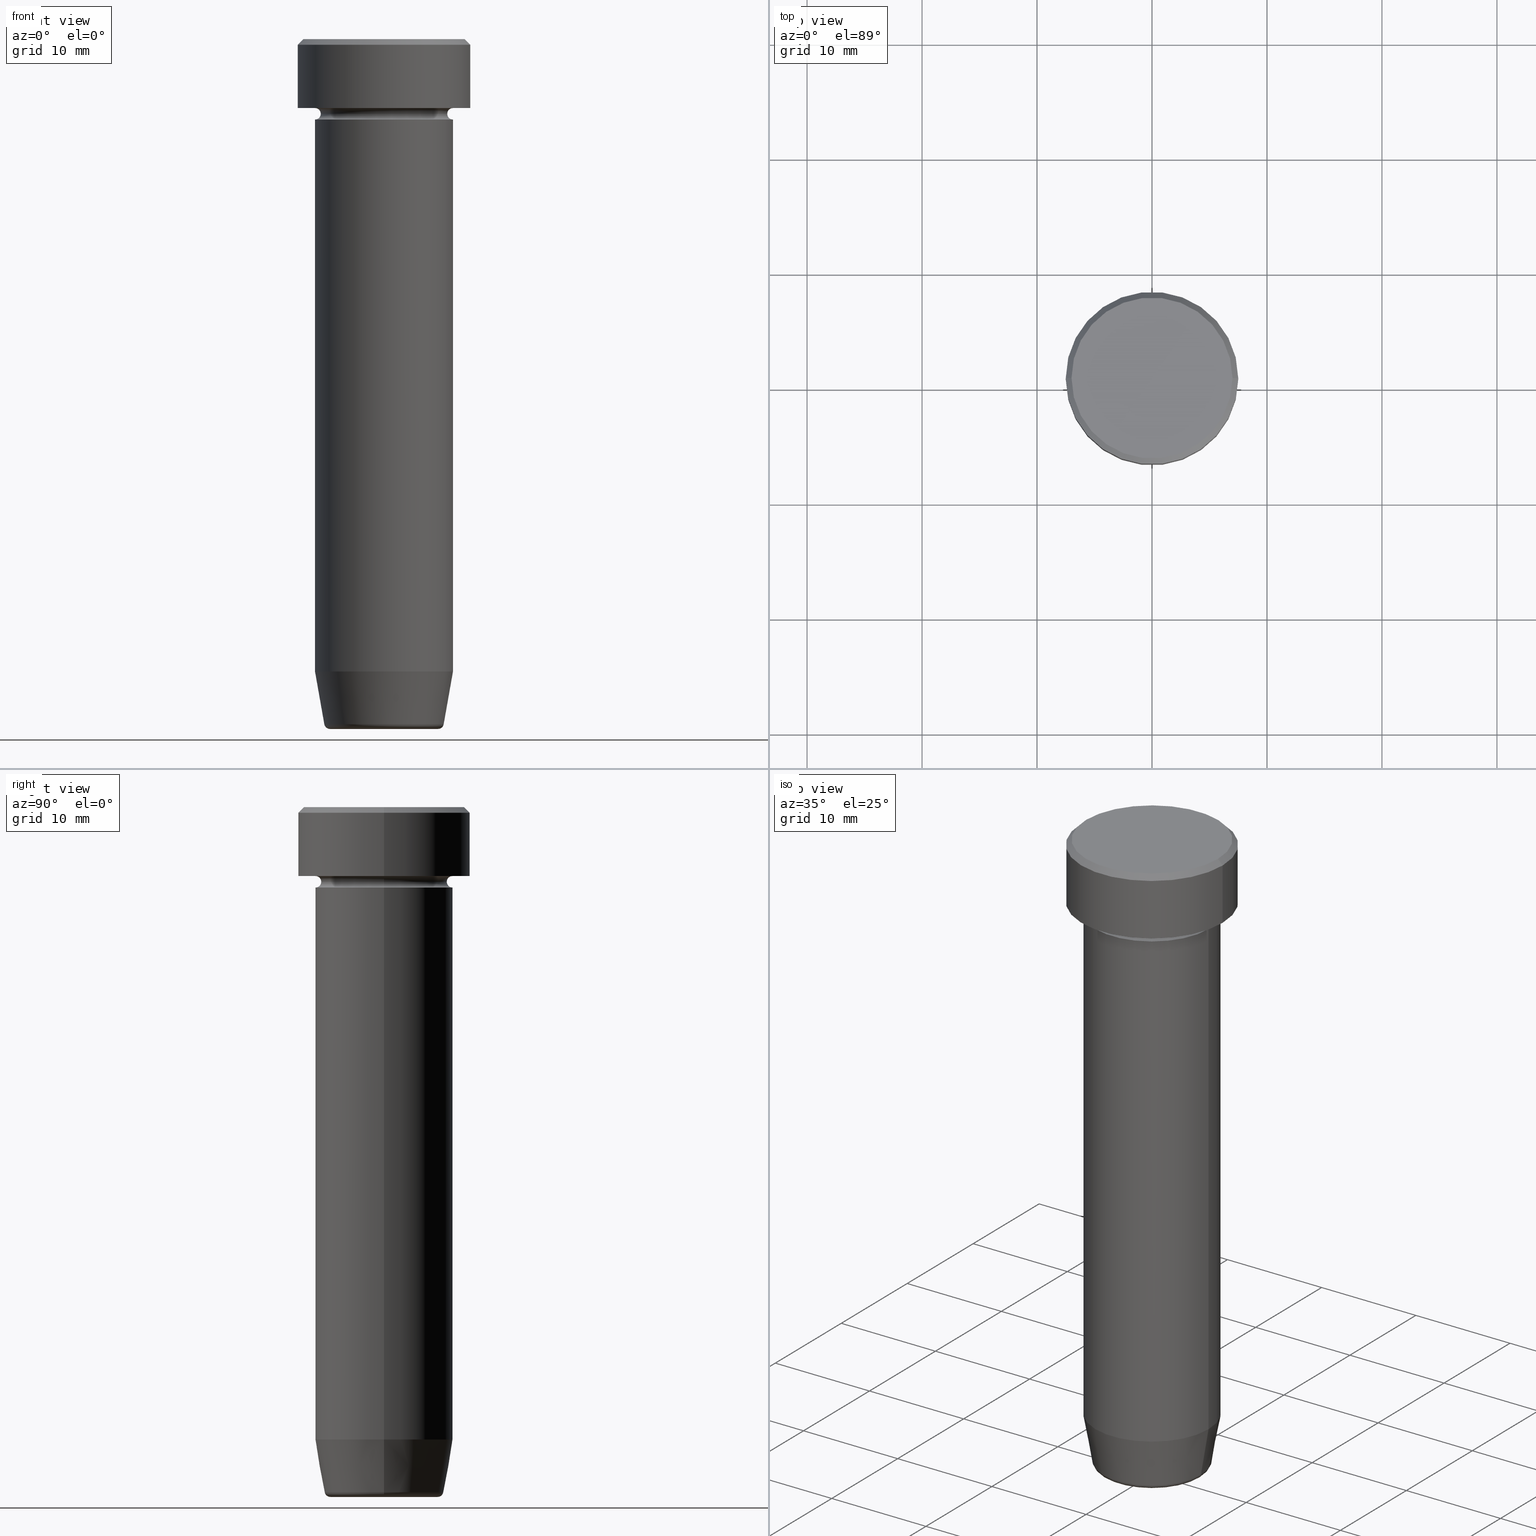
[diagram: canonical four-view strip — front | top / right | iso, engineering-drawing reading convention]
A machine part, canonical four-view strip (front | top / right | iso — engineering-drawing reading convention). The complete STEP part file that produces these views, byte-faithful:
ISO-10303-21;
HEADER;
FILE_DESCRIPTION (( 'STEP AP203' ),
    '1' );
FILE_NAME ('d902.STEP',
    '2024-01-03T00:08:45',
    ( '' ),
    ( '' ),
    'SwSTEP 2.0',
    'SolidWorks 2019',
    '' );
FILE_SCHEMA (( 'CONFIG_CONTROL_DESIGN' ));
ENDSEC;

DATA;
#1 = ADVANCED_FACE ( 'NONE', ( #326 ), #167, .F. ) ;
#2 = EDGE_LOOP ( 'NONE', ( #96, #515, #476, #63 ) ) ;
#3 = DIRECTION ( 'NONE',  ( -0.000000000000000000, -0.000000000000000000, 1.000000000000000000 ) ) ;
#4 = ORIENTED_EDGE ( 'NONE', *, *, #236, .T. ) ;
#5 = APPROVAL_DATE_TIME ( #571, #340 ) ;
#6 = VERTEX_POINT ( 'NONE', #372 ) ;
#7 = VERTEX_POINT ( 'NONE', #182 ) ;
#8 = EDGE_CURVE ( 'NONE', #565, #295, #83, .T. ) ;
#9 = DIRECTION ( 'NONE',  ( -1.000000000000000000, 0.000000000000000000, 0.000000000000000000 ) ) ;
#10 = FACE_OUTER_BOUND ( 'NONE', #517, .T. ) ;
#11 = TOROIDAL_SURFACE ( 'NONE', #362, 6.000000000000000000, 0.5000000000000000000 ) ;
#12 = CIRCLE ( 'NONE', #39, 6.000000000000000000 ) ;
#13 = ORIENTED_EDGE ( 'NONE', *, *, #88, .T. ) ;
#14 = DIRECTION ( 'NONE',  ( -1.000000000000000000, 0.000000000000000000, 0.000000000000000000 ) ) ;
#15 = CC_DESIGN_SECURITY_CLASSIFICATION ( #135, ( #511 ) ) ;
#16 = PERSON_AND_ORGANIZATION ( #253, #54 ) ;
#17 = VERTEX_POINT ( 'NONE', #58 ) ;
#18 = ORIENTED_EDGE ( 'NONE', *, *, #215, .F. ) ;
#19 = ORIENTED_EDGE ( 'NONE', *, *, #56, .F. ) ;
#20 = DIRECTION ( 'NONE',  ( 1.000000000000000000, 0.000000000000000000, 0.000000000000000000 ) ) ;
#21 = TOROIDAL_SURFACE ( 'NONE', #144, 6.000000000000000000, 0.5000000000000000000 ) ;
#22 = DIRECTION ( 'NONE',  ( 0.000000000000000000, -1.000000000000000000, 0.000000000000000000 ) ) ;
#23 = CARTESIAN_POINT ( 'NONE',  ( 0.000000000000000000, 0.000000000000000000, -17.00000000000000000 ) ) ;
#24 = VECTOR ( 'NONE', #115, 1000.000000000000000 ) ;
#25 = EDGE_LOOP ( 'NONE', ( #582, #480, #496, #434 ) ) ;
#26 = CYLINDRICAL_SURFACE ( 'NONE', #354, 6.000000000000000000 ) ;
#27 = CARTESIAN_POINT ( 'NONE',  ( 0.000000000000000000, 0.000000000000000000, -60.00000000000000000 ) ) ;
#28 = CARTESIAN_POINT ( 'NONE',  ( -6.000000000000000000, 0.000000000000000000, -6.500000000000000888 ) ) ;
#29 = DIRECTION ( 'NONE',  ( 0.000000000000000000, -0.000000000000000000, 1.000000000000000000 ) ) ;
#30 = CONICAL_SURFACE ( 'NONE', #53, 5.118365096457674568, 0.1745329251994331143 ) ;
#31 = AXIS2_PLACEMENT_3D ( 'NONE', #561, #287, #300 ) ;
#32 = DIRECTION ( 'NONE',  ( 1.000000000000000000, 0.000000000000000000, 0.000000000000000000 ) ) ;
#33 = PERSON_AND_ORGANIZATION_ROLE ( 'design_owner' ) ;
#34 = DIRECTION ( 'NONE',  ( 1.000000000000000000, 0.000000000000000000, 0.000000000000000000 ) ) ;
#35 = DIRECTION ( 'NONE',  ( -0.000000000000000000, -0.000000000000000000, 1.000000000000000000 ) ) ;
#36 = DIRECTION ( 'NONE',  ( -0.000000000000000000, -0.000000000000000000, 1.000000000000000000 ) ) ;
#37 =( NAMED_UNIT ( * ) SI_UNIT ( $, .STERADIAN. ) SOLID_ANGLE_UNIT ( ) );
#38 = VECTOR ( 'NONE', #585, 1000.000000000000000 ) ;
#39 = AXIS2_PLACEMENT_3D ( 'NONE', #559, #138, #599 ) ;
#40 = FACE_OUTER_BOUND ( 'NONE', #190, .T. ) ;
#41 = EDGE_CURVE ( 'NONE', #243, #154, #197, .T. ) ;
#42 = CARTESIAN_POINT ( 'NONE',  ( -7.500000000000000000, 9.184850993605147944E-16, 0.000000000000000000 ) ) ;
#43 = EDGE_LOOP ( 'NONE', ( #441, #4, #397, #534 ) ) ;
#44 = FACE_OUTER_BOUND ( 'NONE', #43, .T. ) ;
#45 = CIRCLE ( 'NONE', #393, 6.000000000000000000 ) ;
#46 = CIRCLE ( 'NONE', #94, 7.500000000000000000 ) ;
#47 = VERTEX_POINT ( 'NONE', #90 ) ;
#48 = EDGE_CURVE ( 'NONE', #565, #172, #520, .T. ) ;
#49 = ORIENTED_EDGE ( 'NONE', *, *, #424, .T. ) ;
#50 = FACE_OUTER_BOUND ( 'NONE', #188, .T. ) ;
#51 = ORIENTED_EDGE ( 'NONE', *, *, #8, .T. ) ;
#52 = PERSON_AND_ORGANIZATION_ROLE ( 'design_supplier' ) ;
#53 = AXIS2_PLACEMENT_3D ( 'NONE', #27, #583, #173 ) ;
#54 = ORGANIZATION ( 'NEUR�EN�', 'NEUR�EN�', '' ) ;
#55 = ORIENTED_EDGE ( 'NONE', *, *, #56, .T. ) ;
#56 = EDGE_CURVE ( 'NONE', #244, #210, #505, .T. ) ;
#57 = DIRECTION ( 'NONE',  ( -1.000000000000000000, -1.224646799147351482E-16, 0.000000000000000000 ) ) ;
#58 = CARTESIAN_POINT ( 'NONE',  ( 6.000000000000000000, 0.000000000000000000, -17.00000000000000000 ) ) ;
#59 = DESIGN_CONTEXT ( 'detailed design', #113, 'design' ) ;
#60 = EDGE_CURVE ( 'NONE', #339, #17, #590, .T. ) ;
#61 = CIRCLE ( 'NONE', #238, 6.000000000000000000 ) ;
#62 = AXIS2_PLACEMENT_3D ( 'NONE', #349, #162, #528 ) ;
#63 = ORIENTED_EDGE ( 'NONE', *, *, #148, .T. ) ;
#64 = FACE_OUTER_BOUND ( 'NONE', #106, .T. ) ;
#65 = DIRECTION ( 'NONE',  ( 1.000000000000000000, 0.000000000000000000, 0.000000000000000000 ) ) ;
#66 = LINE ( 'NONE', #119, #38 ) ;
#67 = CARTESIAN_POINT ( 'NONE',  ( 0.000000000000000000, 0.000000000000000000, -0.4999999999999987232 ) ) ;
#68 = DIRECTION ( 'NONE',  ( -0.000000000000000000, -0.000000000000000000, 1.000000000000000000 ) ) ;
#69 = CIRCLE ( 'NONE', #574, 0.5000000000000004441 ) ;
#70 = CC_DESIGN_PERSON_AND_ORGANIZATION_ASSIGNMENT ( #179, #33, ( #127 ) ) ;
#71 = APPLICATION_PROTOCOL_DEFINITION ( 'international standard', 'config_control_design', 1994, #113 ) ;
#72 = COORDINATED_UNIVERSAL_TIME_OFFSET ( 1, 0, .AHEAD. ) ;
#73 = DIRECTION ( 'NONE',  ( -0.000000000000000000, -0.000000000000000000, 1.000000000000000000 ) ) ;
#74 = FACE_OUTER_BOUND ( 'NONE', #439, .T. ) ;
#75 = CARTESIAN_POINT ( 'NONE',  ( 0.000000000000000000, 0.000000000000000000, 0.000000000000000000 ) ) ;
#76 = CARTESIAN_POINT ( 'NONE',  ( 0.000000000000000000, 0.000000000000000000, -60.00000000000000000 ) ) ;
#77 = DIRECTION ( 'NONE',  ( -1.000000000000000000, 1.224646799147351482E-16, 0.000000000000000000 ) ) ;
#78 = ADVANCED_FACE ( 'NONE', ( #552 ), #132, .T. ) ;
#79 = APPLICATION_CONTEXT ( 'configuration controlled 3d designs of mechanical parts and assemblies' ) ;
#80 = CARTESIAN_POINT ( 'NONE',  ( 0.000000000000000000, 0.000000000000000000, -6.000000000000000000 ) ) ;
#81 = AXIS2_PLACEMENT_3D ( 'NONE', #75, #371, #272 ) ;
#82 = CC_DESIGN_APPROVAL ( #361, ( #558 ) ) ;
#83 = LINE ( 'NONE', #42, #157 ) ;
#84 = DIRECTION ( 'NONE',  ( -1.000000000000000000, 0.000000000000000000, 0.000000000000000000 ) ) ;
#85 = CC_DESIGN_DATE_AND_TIME_ASSIGNMENT ( #291, #99, ( #558 ) ) ;
#86 = DIRECTION ( 'NONE',  ( 0.000000000000000000, 0.000000000000000000, -1.000000000000000000 ) ) ;
#87 = EDGE_CURVE ( 'NONE', #212, #244, #338, .T. ) ;
#88 = EDGE_CURVE ( 'NONE', #17, #339, #61, .T. ) ;
#89 = ORIENTED_EDGE ( 'NONE', *, *, #376, .T. ) ;
#90 = CARTESIAN_POINT ( 'NONE',  ( -5.191219157375141613, 6.852645359818003952E-16, -59.58682408883346682 ) ) ;
#91 = CC_DESIGN_DATE_AND_TIME_ASSIGNMENT ( #525, #447, ( #135 ) ) ;
#92 = VECTOR ( 'NONE', #428, 1000.000000000000000 ) ;
#93 = ADVANCED_FACE ( 'NONE', ( #129 ), #224, .F. ) ;
#94 = AXIS2_PLACEMENT_3D ( 'NONE', #303, #498, #20 ) ;
#95 = ORIENTED_EDGE ( 'NONE', *, *, #60, .F. ) ;
#96 = ORIENTED_EDGE ( 'NONE', *, *, #8, .F. ) ;
#97 = ORIENTED_EDGE ( 'NONE', *, *, #390, .F. ) ;
#98 = PERSON_AND_ORGANIZATION ( #253, #54 ) ;
#99 = DATE_TIME_ROLE ( 'creation_date' ) ;
#100 = DIRECTION ( 'NONE',  ( 0.1736481776669305255, 0.000000000000000000, 0.9848077530122081313 ) ) ;
#101 = EDGE_LOOP ( 'NONE', ( #247, #297 ) ) ;
#102 = CARTESIAN_POINT ( 'NONE',  ( 6.000000000000000000, 7.347880794884119736E-16, -6.500000000000000888 ) ) ;
#103 = AXIS2_PLACEMENT_3D ( 'NONE', #543, #73, #269 ) ;
#104 = CIRCLE ( 'NONE', #186, 0.5000000000000004441 ) ;
#105 = DIRECTION ( 'NONE',  ( 0.000000000000000000, 0.000000000000000000, -1.000000000000000000 ) ) ;
#106 = EDGE_LOOP ( 'NONE', ( #293, #483 ) ) ;
#107 = CARTESIAN_POINT ( 'NONE',  ( 0.000000000000000000, 0.000000000000000000, -6.500000000000000888 ) ) ;
#108 = CARTESIAN_POINT ( 'NONE',  ( -6.000000000000000000, 0.000000000000000000, -6.000000000000000000 ) ) ;
#109 = ADVANCED_FACE ( 'NONE', ( #312 ), #207, .F. ) ;
#110 = DIRECTION ( 'NONE',  ( -0.000000000000000000, -0.000000000000000000, 1.000000000000000000 ) ) ;
#111 = EDGE_CURVE ( 'NONE', #6, #210, #373, .T. ) ;
#112 = ORIENTED_EDGE ( 'NONE', *, *, #566, .F. ) ;
#113 = APPLICATION_CONTEXT ( 'configuration controlled 3d designs of mechanical parts and assemblies' ) ;
#114 = CIRCLE ( 'NONE', #296, 7.000000000000001776 ) ;
#115 = DIRECTION ( 'NONE',  ( -0.000000000000000000, -0.000000000000000000, 1.000000000000000000 ) ) ;
#116 = EDGE_LOOP ( 'NONE', ( #334, #192, #408, #95 ) ) ;
#117 = DIRECTION ( 'NONE',  ( -0.1736481776669305255, 2.126576849575773764E-17, 0.9848077530122081313 ) ) ;
#118 = DIRECTION ( 'NONE',  ( -0.000000000000000000, -0.000000000000000000, 1.000000000000000000 ) ) ;
#119 = CARTESIAN_POINT ( 'NONE',  ( 6.000000000000000000, 0.000000000000000000, 0.000000000000000000 ) ) ;
#120 = DIRECTION ( 'NONE',  ( 1.000000000000000000, 0.000000000000000000, 0.000000000000000000 ) ) ;
#121 = EDGE_CURVE ( 'NONE', #569, #47, #69, .T. ) ;
#122 = DIRECTION ( 'NONE',  ( 1.000000000000000000, 0.000000000000000000, 0.000000000000000000 ) ) ;
#123 = EDGE_CURVE ( 'NONE', #154, #290, #452, .T. ) ;
#124 = DIRECTION ( 'NONE',  ( 1.000000000000000000, 0.000000000000000000, 0.000000000000000000 ) ) ;
#125 = DIRECTION ( 'NONE',  ( -1.000000000000000000, 0.000000000000000000, -0.000000000000000000 ) ) ;
#126 = CIRCLE ( 'NONE', #478, 7.500000000000000000 ) ;
#127 = PRODUCT ( 'd902', 'd902', '', ( #426 ) ) ;
#128 = APPROVAL_PERSON_ORGANIZATION ( #16, #228, #278 ) ;
#129 = FACE_OUTER_BOUND ( 'NONE', #422, .T. ) ;
#130 = ADVANCED_FACE ( 'NONE', ( #358 ), #21, .F. ) ;
#131 = DIRECTION ( 'NONE',  ( 1.224646799147353207E-16, 1.000000000000000000, 0.000000000000000000 ) ) ;
#132 = CYLINDRICAL_SURFACE ( 'NONE', #538, 6.000000000000000000 ) ;
#133 = CARTESIAN_POINT ( 'NONE',  ( -6.000000000000000000, 7.347880794884119736E-16, -17.00000000000000000 ) ) ;
#134 = CARTESIAN_POINT ( 'NONE',  ( 0.000000000000000000, 0.000000000000000000, -7.000000000000000000 ) ) ;
#135 = SECURITY_CLASSIFICATION ( '', '', #347 ) ;
#136 = DIRECTION ( 'NONE',  ( 1.000000000000000000, 0.000000000000000000, 0.000000000000000000 ) ) ;
#137 = LINE ( 'NONE', #437, #463 ) ;
#138 = DIRECTION ( 'NONE',  ( -0.000000000000000000, -0.000000000000000000, 1.000000000000000000 ) ) ;
#139 = ORIENTED_EDGE ( 'NONE', *, *, #171, .F. ) ;
#140 = CARTESIAN_POINT ( 'NONE',  ( 0.000000000000000000, 0.000000000000000000, 0.000000000000000000 ) ) ;
#141 = ADVANCED_BREP_SHAPE_REPRESENTATION ( 'd902', ( #235, #226, #231 ), #471 ) ;
#142 = FACE_OUTER_BOUND ( 'NONE', #351, .T. ) ;
#143 = EDGE_LOOP ( 'NONE', ( #365, #49, #301, #570 ) ) ;
#144 = AXIS2_PLACEMENT_3D ( 'NONE', #107, #302, #497 ) ;
#145 = CARTESIAN_POINT ( 'NONE',  ( 6.000000000000000000, 0.000000000000000000, -55.00000000000000000 ) ) ;
#146 = ORIENTED_EDGE ( 'NONE', *, *, #204, .F. ) ;
#147 = ORIENTED_EDGE ( 'NONE', *, *, #121, .F. ) ;
#148 = EDGE_CURVE ( 'NONE', #7, #295, #329, .T. ) ;
#149 = ORIENTED_EDGE ( 'NONE', *, *, #352, .F. ) ;
#150 = ORIENTED_EDGE ( 'NONE', *, *, #376, .F. ) ;
#151 = CYLINDRICAL_SURFACE ( 'NONE', #62, 7.500000000000000000 ) ;
#152 = CC_DESIGN_PERSON_AND_ORGANIZATION_ASSIGNMENT ( #242, #193, ( #135 ) ) ;
#153 = ORIENTED_EDGE ( 'NONE', *, *, #474, .T. ) ;
#154 = VERTEX_POINT ( 'NONE', #145 ) ;
#155 = DIRECTION ( 'NONE',  ( 0.000000000000000000, -1.000000000000000000, 0.000000000000000000 ) ) ;
#156 = PERSON_AND_ORGANIZATION_ROLE ( 'creator' ) ;
#157 = VECTOR ( 'NONE', #573, 1000.000000000000000 ) ;
#158 = AXIS2_PLACEMENT_3D ( 'NONE', #430, #205, #9 ) ;
#159 = VERTEX_POINT ( 'NONE', #341 ) ;
#160 = EDGE_CURVE ( 'NONE', #243, #47, #555, .T. ) ;
#161 = DIRECTION ( 'NONE',  ( 1.000000000000000000, 0.000000000000000000, 0.000000000000000000 ) ) ;
#162 = DIRECTION ( 'NONE',  ( -0.000000000000000000, -0.000000000000000000, 1.000000000000000000 ) ) ;
#163 = EDGE_LOOP ( 'NONE', ( #198, #360, #357, #146 ) ) ;
#164 = CARTESIAN_POINT ( 'NONE',  ( 0.000000000000000000, 0.000000000000000000, 0.000000000000000000 ) ) ;
#165 = CARTESIAN_POINT ( 'NONE',  ( 0.000000000000000000, 0.000000000000000000, 0.000000000000000000 ) ) ;
#166 = DIRECTION ( 'NONE',  ( -1.000000000000000000, 0.000000000000000000, -0.000000000000000000 ) ) ;
#167 = TOROIDAL_SURFACE ( 'NONE', #432, 6.000000000000000000, 0.5000000000000000000 ) ;
#168 = TOROIDAL_SURFACE ( 'NONE', #279, 4.698815280869033550, 0.5000000000000000000 ) ;
#169 = DIRECTION ( 'NONE',  ( 1.000000000000000000, 0.000000000000000000, 0.000000000000000000 ) ) ;
#170 = DIRECTION ( 'NONE',  ( -1.000000000000000000, 1.224646799147351482E-16, 0.000000000000000000 ) ) ;
#171 = EDGE_CURVE ( 'NONE', #290, #154, #548, .T. ) ;
#172 = VERTEX_POINT ( 'NONE', #380 ) ;
#173 = DIRECTION ( 'NONE',  ( 1.000000000000000000, 0.000000000000000000, 0.000000000000000000 ) ) ;
#174 = CARTESIAN_POINT ( 'NONE',  ( 0.000000000000000000, 0.000000000000000000, -17.00000000000000000 ) ) ;
#175 = DIRECTION ( 'NONE',  ( -0.000000000000000000, -0.000000000000000000, 1.000000000000000000 ) ) ;
#176 = ORIENTED_EDGE ( 'NONE', *, *, #199, .T. ) ;
#177 = CALENDAR_DATE ( 2024, 3, 1 ) ;
#178 = AXIS2_PLACEMENT_3D ( 'NONE', #102, #346, #57 ) ;
#179 = PERSON_AND_ORGANIZATION ( #253, #54 ) ;
#180 = DIRECTION ( 'NONE',  ( -0.000000000000000000, -0.000000000000000000, 1.000000000000000000 ) ) ;
#181 = DIRECTION ( 'NONE',  ( -0.7071067811865469066, 0.000000000000000000, -0.7071067811865481278 ) ) ;
#182 = CARTESIAN_POINT ( 'NONE',  ( 7.500000000000000000, 0.000000000000000000, -0.4999999999999987232 ) ) ;
#183 = CALENDAR_DATE ( 2024, 3, 1 ) ;
#184 = DIRECTION ( 'NONE',  ( -0.000000000000000000, -0.000000000000000000, 1.000000000000000000 ) ) ;
#185 = AXIS2_PLACEMENT_3D ( 'NONE', #507, #271, #259 ) ;
#186 = AXIS2_PLACEMENT_3D ( 'NONE', #203, #155, #353 ) ;
#187 = DIRECTION ( 'NONE',  ( 1.000000000000000000, 0.000000000000000000, 0.000000000000000000 ) ) ;
#188 = EDGE_LOOP ( 'NONE', ( #337, #51, #209, #440 ) ) ;
#189 = DIRECTION ( 'NONE',  ( -0.000000000000000000, -0.000000000000000000, 1.000000000000000000 ) ) ;
#190 = EDGE_LOOP ( 'NONE', ( #147, #385, #492, #150 ) ) ;
#191 = CARTESIAN_POINT ( 'NONE',  ( 0.000000000000000000, 0.000000000000000000, 0.000000000000000000 ) ) ;
#192 = ORIENTED_EDGE ( 'NONE', *, *, #171, .T. ) ;
#193 = PERSON_AND_ORGANIZATION_ROLE ( 'classification_officer' ) ;
#194 = EDGE_LOOP ( 'NONE', ( #454, #343, #448, #392 ) ) ;
#195 = AXIS2_PLACEMENT_3D ( 'NONE', #307, #36, #366 ) ;
#196 = APPROVAL_PERSON_ORGANIZATION ( #503, #361, #584 ) ;
#197 = LINE ( 'NONE', #526, #405 ) ;
#198 = ORIENTED_EDGE ( 'NONE', *, *, #248, .T. ) ;
#199 = EDGE_CURVE ( 'NONE', #245, #7, #137, .T. ) ;
#200 = ADVANCED_FACE ( 'NONE', ( #142 ), #457, .T. ) ;
#201 = SHAPE_DEFINITION_REPRESENTATION ( #521, #141 ) ;
#202 = ORIENTED_EDGE ( 'NONE', *, *, #236, .F. ) ;
#203 = CARTESIAN_POINT ( 'NONE',  ( 6.000000000000000000, 0.000000000000000000, -6.500000000000000888 ) ) ;
#204 = EDGE_CURVE ( 'NONE', #244, #518, #305, .T. ) ;
#205 = DIRECTION ( 'NONE',  ( -0.000000000000000000, -0.000000000000000000, 1.000000000000000000 ) ) ;
#206 = DIRECTION ( 'NONE',  ( 1.000000000000000000, 0.000000000000000000, 0.000000000000000000 ) ) ;
#207 = TOROIDAL_SURFACE ( 'NONE', #185, 6.000000000000000000, 0.5000000000000000000 ) ;
#208 = CIRCLE ( 'NONE', #255, 6.000000000000000000 ) ;
#209 = ORIENTED_EDGE ( 'NONE', *, *, #566, .T. ) ;
#210 = VERTEX_POINT ( 'NONE', #369 ) ;
#211 = PERSON_AND_ORGANIZATION_ROLE ( 'creator' ) ;
#212 = VERTEX_POINT ( 'NONE', #322 ) ;
#213 = DIRECTION ( 'NONE',  ( -0.000000000000000000, -0.000000000000000000, 1.000000000000000000 ) ) ;
#214 = CARTESIAN_POINT ( 'NONE',  ( 4.698815280869033550, 0.000000000000000000, -60.00000000000000000 ) ) ;
#215 = EDGE_CURVE ( 'NONE', #536, #159, #66, .T. ) ;
#216 = CARTESIAN_POINT ( 'NONE',  ( -6.000000000000000000, 7.347880794884119736E-16, -6.500000000000000888 ) ) ;
#217 = AXIS2_PLACEMENT_3D ( 'NONE', #67, #284, #187 ) ;
#218 = DIRECTION ( 'NONE',  ( 0.000000000000000000, 0.000000000000000000, -1.000000000000000000 ) ) ;
#219 = AXIS2_PLACEMENT_3D ( 'NONE', #80, #275, #281 ) ;
#220 = CC_DESIGN_PERSON_AND_ORGANIZATION_ASSIGNMENT ( #456, #211, ( #558 ) ) ;
#221 = CARTESIAN_POINT ( 'NONE',  ( 0.000000000000000000, 0.000000000000000000, -6.000000000000000000 ) ) ;
#222 = CALENDAR_DATE ( 2024, 3, 1 ) ;
#223 = ADVANCED_FACE ( 'NONE', ( #74 ), #26, .T. ) ;
#224 = PLANE ( 'NONE',  #529 ) ;
#225 = CARTESIAN_POINT ( 'NONE',  ( 0.000000000000000000, 1.224646799147354440E-15, -60.00000000000000000 ) ) ;
#226 = MANIFOLD_SOLID_BREP ( 'Zaoblit4', #263 ) ;
#227 = CARTESIAN_POINT ( 'NONE',  ( 7.500000000000000000, 0.000000000000000000, 0.000000000000000000 ) ) ;
#228 = APPROVAL ( #399, 'NEUR�EN�' ) ;
#229 = PLANE ( 'NONE',  #381 ) ;
#230 = AXIS2_PLACEMENT_3D ( 'NONE', #502, #461, #65 ) ;
#231 = AXIS2_PLACEMENT_3D ( 'NONE', #273, #415, #169 ) ;
#232 = DIRECTION ( 'NONE',  ( -0.000000000000000000, -0.000000000000000000, 1.000000000000000000 ) ) ;
#233 = CARTESIAN_POINT ( 'NONE',  ( 6.000000000000000000, 0.000000000000000000, -17.00000000000000000 ) ) ;
#234 = DIRECTION ( 'NONE',  ( -0.000000000000000000, -0.000000000000000000, 1.000000000000000000 ) ) ;
#235 = MANIFOLD_SOLID_BREP ( 'Zkosen�1', #554 ) ;
#236 = EDGE_CURVE ( 'NONE', #6, #536, #45, .T. ) ;
#237 = EDGE_LOOP ( 'NONE', ( #438, #482 ) ) ;
#238 = AXIS2_PLACEMENT_3D ( 'NONE', #467, #175, #120 ) ;
#239 = AXIS2_PLACEMENT_3D ( 'NONE', #164, #105, #14 ) ;
#240 = CARTESIAN_POINT ( 'NONE',  ( 0.000000000000000000, 0.000000000000000000, -55.00000000000000000 ) ) ;
#241 = ORIENTED_EDGE ( 'NONE', *, *, #514, .T. ) ;
#242 = PERSON_AND_ORGANIZATION ( #253, #54 ) ;
#243 = VERTEX_POINT ( 'NONE', #425 ) ;
#244 = VERTEX_POINT ( 'NONE', #319 ) ;
#245 = VERTEX_POINT ( 'NONE', #465 ) ;
#246 = CONICAL_SURFACE ( 'NONE', #506, 7.000000000000001776, 0.7853981633974473908 ) ;
#247 = ORIENTED_EDGE ( 'NONE', *, *, #268, .F. ) ;
#248 = EDGE_CURVE ( 'NONE', #244, #212, #414, .T. ) ;
#249 = CARTESIAN_POINT ( 'NONE',  ( -7.500000000000000000, 9.184850993605147944E-16, -6.000000000000000000 ) ) ;
#250 = ORIENTED_EDGE ( 'NONE', *, *, #514, .F. ) ;
#251 = CARTESIAN_POINT ( 'NONE',  ( 4.698815280869033550, 0.000000000000000000, -59.50000000000000000 ) ) ;
#252 = CARTESIAN_POINT ( 'NONE',  ( -4.698815280869033550, 6.055899509126407292E-16, -60.00000000000000000 ) ) ;
#253 = PERSON ( 'NEUR�EN�', 'NEUR�EN�', 'NEUR�EN�', ('NEUR�EN�'), ('NEUR�EN�'), ('NEUR�EN�') ) ;
#254 = AXIS2_PLACEMENT_3D ( 'NONE', #216, #581, #170 ) ;
#255 = AXIS2_PLACEMENT_3D ( 'NONE', #419, #118, #310 ) ;
#256 = ADVANCED_FACE ( 'NONE', ( #587 ), #470, .T. ) ;
#257 = EDGE_CURVE ( 'NONE', #47, #290, #265, .T. ) ;
#258 = PLANE ( 'NONE',  #328 ) ;
#259 = DIRECTION ( 'NONE',  ( -1.000000000000000000, 0.000000000000000000, 0.000000000000000000 ) ) ;
#260 = FACE_BOUND ( 'NONE', #237, .T. ) ;
#261 = DIRECTION ( 'NONE',  ( 1.000000000000000000, 0.000000000000000000, 0.000000000000000000 ) ) ;
#262 = APPROVAL_STATUS ( 'not_yet_approved' ) ;
#263 = CLOSED_SHELL ( 'NONE', ( #523, #256, #327, #93, #78, #336, #299, #409 ) ) ;
#264 = AXIS2_PLACEMENT_3D ( 'NONE', #140, #184, #32 ) ;
#265 = LINE ( 'NONE', #501, #276 ) ;
#266 = DIRECTION ( 'NONE',  ( -0.000000000000000000, -0.000000000000000000, 1.000000000000000000 ) ) ;
#267 = COORDINATED_UNIVERSAL_TIME_OFFSET ( 1, 0, .AHEAD. ) ;
#268 = EDGE_CURVE ( 'NONE', #172, #565, #126, .T. ) ;
#269 = DIRECTION ( 'NONE',  ( 1.000000000000000000, 0.000000000000000000, 0.000000000000000000 ) ) ;
#270 = FACE_OUTER_BOUND ( 'NONE', #143, .T. ) ;
#271 = DIRECTION ( 'NONE',  ( 0.000000000000000000, 0.000000000000000000, -1.000000000000000000 ) ) ;
#272 = DIRECTION ( 'NONE',  ( 1.000000000000000000, 0.000000000000000000, 0.000000000000000000 ) ) ;
#273 = CARTESIAN_POINT ( 'NONE',  ( 0.000000000000000000, 0.000000000000000000, 0.000000000000000000 ) ) ;
#274 = CARTESIAN_POINT ( 'NONE',  ( 0.000000000000000000, 0.000000000000000000, -55.00000000000000000 ) ) ;
#275 = DIRECTION ( 'NONE',  ( -0.000000000000000000, -0.000000000000000000, 1.000000000000000000 ) ) ;
#276 = VECTOR ( 'NONE', #117, 999.9999999999998863 ) ;
#277 = DIRECTION ( 'NONE',  ( -1.000000000000000000, 0.000000000000000000, 0.000000000000000000 ) ) ;
#278 = APPROVAL_ROLE ( '' ) ;
#279 = AXIS2_PLACEMENT_3D ( 'NONE', #383, #234, #378 ) ;
#280 = CARTESIAN_POINT ( 'NONE',  ( 0.000000000000000000, 0.000000000000000000, 0.000000000000000000 ) ) ;
#281 = DIRECTION ( 'NONE',  ( -1.000000000000000000, 0.000000000000000000, 0.000000000000000000 ) ) ;
#282 = CYLINDRICAL_SURFACE ( 'NONE', #264, 6.000000000000000000 ) ;
#283 = FACE_OUTER_BOUND ( 'NONE', #194, .T. ) ;
#284 = DIRECTION ( 'NONE',  ( 0.000000000000000000, 0.000000000000000000, -1.000000000000000000 ) ) ;
#285 = ORIENTED_EDGE ( 'NONE', *, *, #331, .T. ) ;
#286 = VERTEX_POINT ( 'NONE', #324 ) ;
#287 = DIRECTION ( 'NONE',  ( -0.000000000000000000, -0.000000000000000000, 1.000000000000000000 ) ) ;
#288 = AXIS2_PLACEMENT_3D ( 'NONE', #274, #232, #161 ) ;
#289 = AXIS2_PLACEMENT_3D ( 'NONE', #191, #387, #333 ) ;
#290 = VERTEX_POINT ( 'NONE', #314 ) ;
#291 = DATE_AND_TIME ( #533, #446 ) ;
#292 = ORIENTED_EDGE ( 'NONE', *, *, #390, .T. ) ;
#293 = ORIENTED_EDGE ( 'NONE', *, *, #459, .T. ) ;
#294 = APPROVAL_STATUS ( 'not_yet_approved' ) ;
#295 = VERTEX_POINT ( 'NONE', #413 ) ;
#296 = AXIS2_PLACEMENT_3D ( 'NONE', #477, #563, #519 ) ;
#297 = ORIENTED_EDGE ( 'NONE', *, *, #48, .F. ) ;
#298 =( NAMED_UNIT ( * ) PLANE_ANGLE_UNIT ( ) SI_UNIT ( $, .RADIAN. ) );
#299 = ADVANCED_FACE ( 'NONE', ( #64 ), #229, .F. ) ;
#300 = DIRECTION ( 'NONE',  ( 1.000000000000000000, 0.000000000000000000, 0.000000000000000000 ) ) ;
#301 = ORIENTED_EDGE ( 'NONE', *, *, #88, .F. ) ;
#302 = DIRECTION ( 'NONE',  ( -0.000000000000000000, -0.000000000000000000, 1.000000000000000000 ) ) ;
#303 = CARTESIAN_POINT ( 'NONE',  ( 0.000000000000000000, 0.000000000000000000, -0.4999999999999987232 ) ) ;
#304 = ORIENTED_EDGE ( 'NONE', *, *, #257, .F. ) ;
#305 = CIRCLE ( 'NONE', #499, 0.5000000000000004441 ) ;
#306 = AXIS2_PLACEMENT_3D ( 'NONE', #76, #553, #384 ) ;
#307 = CARTESIAN_POINT ( 'NONE',  ( 0.000000000000000000, 0.000000000000000000, -60.00000000000000000 ) ) ;
#308 = EDGE_LOOP ( 'NONE', ( #19, #522, #241, #292 ) ) ;
#309 = FACE_OUTER_BOUND ( 'NONE', #163, .T. ) ;
#310 = DIRECTION ( 'NONE',  ( 1.000000000000000000, 0.000000000000000000, 0.000000000000000000 ) ) ;
#311 = APPROVAL_ROLE ( '' ) ;
#312 = FACE_OUTER_BOUND ( 'NONE', #25, .T. ) ;
#313 = ORIENTED_EDGE ( 'NONE', *, *, #445, .F. ) ;
#314 = CARTESIAN_POINT ( 'NONE',  ( -6.000000000000000000, 7.347880794884119736E-16, -55.00000000000000000 ) ) ;
#315 = ADVANCED_FACE ( 'NONE', ( #309 ), #11, .F. ) ;
#316 = DIRECTION ( 'NONE',  ( 1.000000000000000000, 0.000000000000000000, 0.000000000000000000 ) ) ;
#317 = AXIS2_PLACEMENT_3D ( 'NONE', #240, #597, #377 ) ;
#318 = AXIS2_PLACEMENT_3D ( 'NONE', #165, #110, #206 ) ;
#319 = CARTESIAN_POINT ( 'NONE',  ( -5.500000000000000000, 7.041719095097280880E-16, -6.500000000000000888 ) ) ;
#320 = ADVANCED_FACE ( 'NONE', ( #260, #546 ), #258, .T. ) ;
#321 = LINE ( 'NONE', #227, #591 ) ;
#322 = CARTESIAN_POINT ( 'NONE',  ( 5.500000000000000000, 0.000000000000000000, -6.500000000000000888 ) ) ;
#323 = CARTESIAN_POINT ( 'NONE',  ( 0.000000000000000000, 0.000000000000000000, -17.00000000000000000 ) ) ;
#324 = CARTESIAN_POINT ( 'NONE',  ( 6.000000000000000000, 7.347880794884119736E-16, -6.000000000000000000 ) ) ;
#325 = COORDINATED_UNIVERSAL_TIME_OFFSET ( 1, 0, .AHEAD. ) ;
#326 = FACE_OUTER_BOUND ( 'NONE', #598, .T. ) ;
#327 = ADVANCED_FACE ( 'NONE', ( #270 ), #589, .T. ) ;
#328 = AXIS2_PLACEMENT_3D ( 'NONE', #469, #578, #125 ) ;
#329 = CIRCLE ( 'NONE', #217, 7.500000000000000000 ) ;
#330 = LOCAL_TIME ( 1, 8, 45.00000000000000000, #72 ) ;
#331 = EDGE_CURVE ( 'NONE', #398, #295, #427, .T. ) ;
#332 = FACE_OUTER_BOUND ( 'NONE', #527, .T. ) ;
#333 = DIRECTION ( 'NONE',  ( 1.000000000000000000, 0.000000000000000000, 0.000000000000000000 ) ) ;
#334 = ORIENTED_EDGE ( 'NONE', *, *, #424, .F. ) ;
#335 = CARTESIAN_POINT ( 'NONE',  ( 0.000000000000000000, 0.000000000000000000, -60.00000000000000000 ) ) ;
#336 = ADVANCED_FACE ( 'NONE', ( #374 ), #30, .T. ) ;
#337 = ORIENTED_EDGE ( 'NONE', *, *, #268, .T. ) ;
#338 = CIRCLE ( 'NONE', #103, 5.500000000000000000 ) ;
#339 = VERTEX_POINT ( 'NONE', #133 ) ;
#340 = APPROVAL ( #294, 'NEUR�EN�' ) ;
#341 = CARTESIAN_POINT ( 'NONE',  ( 6.000000000000000000, 0.000000000000000000, -7.000000000000000000 ) ) ;
#342 = DATE_AND_TIME ( #177, #539 ) ;
#343 = ORIENTED_EDGE ( 'NONE', *, *, #121, .T. ) ;
#344 = FACE_OUTER_BOUND ( 'NONE', #404, .T. ) ;
#345 = ORIENTED_EDGE ( 'NONE', *, *, #41, .F. ) ;
#346 = DIRECTION ( 'NONE',  ( -1.224646799147353207E-16, 1.000000000000000000, 0.000000000000000000 ) ) ;
#347 = SECURITY_CLASSIFICATION_LEVEL ( 'unclassified' ) ;
#348 = ORIENTED_EDGE ( 'NONE', *, *, #199, .F. ) ;
#349 = CARTESIAN_POINT ( 'NONE',  ( 0.000000000000000000, 0.000000000000000000, 0.000000000000000000 ) ) ;
#350 = EDGE_CURVE ( 'NONE', #518, #286, #579, .T. ) ;
#351 = EDGE_LOOP ( 'NONE', ( #149, #202 ) ) ;
#352 = EDGE_CURVE ( 'NONE', #536, #6, #12, .T. ) ;
#353 = DIRECTION ( 'NONE',  ( 0.000000000000000000, 0.000000000000000000, -1.000000000000000000 ) ) ;
#354 = AXIS2_PLACEMENT_3D ( 'NONE', #411, #577, #363 ) ;
#355 = AXIS2_PLACEMENT_3D ( 'NONE', #473, #189, #316 ) ;
#356 = COORDINATED_UNIVERSAL_TIME_OFFSET ( 1, 0, .AHEAD. ) ;
#357 = ORIENTED_EDGE ( 'NONE', *, *, #350, .F. ) ;
#358 = FACE_OUTER_BOUND ( 'NONE', #308, .T. ) ;
#359 = ORIENTED_EDGE ( 'NONE', *, *, #248, .F. ) ;
#360 = ORIENTED_EDGE ( 'NONE', *, *, #586, .T. ) ;
#361 = APPROVAL ( #262, 'NEUR�EN�' ) ;
#362 = AXIS2_PLACEMENT_3D ( 'NONE', #364, #418, #458 ) ;
#363 = DIRECTION ( 'NONE',  ( 1.000000000000000000, 0.000000000000000000, 0.000000000000000000 ) ) ;
#364 = CARTESIAN_POINT ( 'NONE',  ( 0.000000000000000000, 0.000000000000000000, -6.500000000000000888 ) ) ;
#365 = ORIENTED_EDGE ( 'NONE', *, *, #123, .T. ) ;
#366 = DIRECTION ( 'NONE',  ( 1.000000000000000000, 0.000000000000000000, 0.000000000000000000 ) ) ;
#367 = DIRECTION ( 'NONE',  ( -0.000000000000000000, -0.000000000000000000, 1.000000000000000000 ) ) ;
#368 = APPROVAL_DATE_TIME ( #342, #361 ) ;
#369 = CARTESIAN_POINT ( 'NONE',  ( -6.000000000000000000, 7.347880794884119736E-16, -7.000000000000000000 ) ) ;
#370 = CIRCLE ( 'NONE', #158, 6.000000000000000000 ) ;
#371 = DIRECTION ( 'NONE',  ( -0.000000000000000000, -0.000000000000000000, 1.000000000000000000 ) ) ;
#372 = CARTESIAN_POINT ( 'NONE',  ( -6.000000000000000000, 7.347880794884119736E-16, -17.00000000000000000 ) ) ;
#373 = LINE ( 'NONE', #504, #92 ) ;
#374 = FACE_OUTER_BOUND ( 'NONE', #401, .T. ) ;
#375 = DIRECTION ( 'NONE',  ( 1.000000000000000000, 0.000000000000000000, 0.000000000000000000 ) ) ;
#376 = EDGE_CURVE ( 'NONE', #47, #243, #575, .T. ) ;
#377 = DIRECTION ( 'NONE',  ( 1.000000000000000000, 0.000000000000000000, 0.000000000000000000 ) ) ;
#378 = DIRECTION ( 'NONE',  ( 1.000000000000000000, 0.000000000000000000, 0.000000000000000000 ) ) ;
#379 = EDGE_CURVE ( 'NONE', #569, #488, #406, .T. ) ;
#380 = CARTESIAN_POINT ( 'NONE',  ( 7.500000000000000000, 0.000000000000000000, -6.000000000000000000 ) ) ;
#381 = AXIS2_PLACEMENT_3D ( 'NONE', #225, #29, #34 ) ;
#382 = CIRCLE ( 'NONE', #395, 6.000000000000000000 ) ;
#383 = CARTESIAN_POINT ( 'NONE',  ( 0.000000000000000000, 0.000000000000000000, -59.50000000000000000 ) ) ;
#384 = DIRECTION ( 'NONE',  ( 1.000000000000000000, 0.000000000000000000, 0.000000000000000000 ) ) ;
#385 = ORIENTED_EDGE ( 'NONE', *, *, #459, .F. ) ;
#386 = LINE ( 'NONE', #516, #433 ) ;
#387 = DIRECTION ( 'NONE',  ( 0.000000000000000000, -0.000000000000000000, 1.000000000000000000 ) ) ;
#388 = ORIENTED_EDGE ( 'NONE', *, *, #148, .F. ) ;
#389 = ORIENTED_EDGE ( 'NONE', *, *, #331, .F. ) ;
#390 = EDGE_CURVE ( 'NONE', #159, #210, #382, .T. ) ;
#391 = COORDINATED_UNIVERSAL_TIME_OFFSET ( 1, 0, .AHEAD. ) ;
#392 = ORIENTED_EDGE ( 'NONE', *, *, #531, .F. ) ;
#393 = AXIS2_PLACEMENT_3D ( 'NONE', #23, #68, #468 ) ;
#394 = DIRECTION ( 'NONE',  ( 1.000000000000000000, 0.000000000000000000, 0.000000000000000000 ) ) ;
#395 = AXIS2_PLACEMENT_3D ( 'NONE', #134, #540, #261 ) ;
#396 = CALENDAR_DATE ( 2024, 3, 1 ) ;
#397 = ORIENTED_EDGE ( 'NONE', *, *, #215, .T. ) ;
#398 = VERTEX_POINT ( 'NONE', #545 ) ;
#399 = APPROVAL_STATUS ( 'not_yet_approved' ) ;
#400 = ADVANCED_FACE ( 'NONE', ( #44 ), #282, .T. ) ;
#401 = EDGE_LOOP ( 'NONE', ( #304, #89, #524, #139 ) ) ;
#402 =( LENGTH_UNIT ( ) NAMED_UNIT ( * ) SI_UNIT ( .MILLI., .METRE. ) );
#403 = FACE_OUTER_BOUND ( 'NONE', #2, .T. ) ;
#404 = EDGE_LOOP ( 'NONE', ( #348, #313, #285, #388 ) ) ;
#405 = VECTOR ( 'NONE', #100, 999.9999999999998863 ) ;
#406 = CIRCLE ( 'NONE', #479, 4.698815280869033550 ) ;
#407 = CC_DESIGN_APPROVAL ( #228, ( #135 ) ) ;
#408 = ORIENTED_EDGE ( 'NONE', *, *, #490, .T. ) ;
#409 = ADVANCED_FACE ( 'NONE', ( #40 ), #556, .T. ) ;
#410 = EDGE_CURVE ( 'NONE', #210, #159, #208, .T. ) ;
#411 = CARTESIAN_POINT ( 'NONE',  ( 0.000000000000000000, 0.000000000000000000, 0.000000000000000000 ) ) ;
#412 = ORIENTED_EDGE ( 'NONE', *, *, #111, .T. ) ;
#413 = CARTESIAN_POINT ( 'NONE',  ( -7.500000000000000000, 9.184850993605147944E-16, -0.4999999999999987232 ) ) ;
#414 = CIRCLE ( 'NONE', #230, 5.500000000000000000 ) ;
#415 = DIRECTION ( 'NONE',  ( 0.000000000000000000, 0.000000000000000000, 1.000000000000000000 ) ) ;
#416 = CC_DESIGN_APPROVAL ( #340, ( #511 ) ) ;
#417 = CIRCLE ( 'NONE', #31, 7.000000000000001776 ) ;
#418 = DIRECTION ( 'NONE',  ( 0.000000000000000000, 0.000000000000000000, -1.000000000000000000 ) ) ;
#419 = CARTESIAN_POINT ( 'NONE',  ( 0.000000000000000000, 0.000000000000000000, -7.000000000000000000 ) ) ;
#420 = DIRECTION ( 'NONE',  ( -0.000000000000000000, -1.000000000000000000, -0.000000000000000000 ) ) ;
#421 = ADVANCED_FACE ( 'NONE', ( #332 ), #246, .T. ) ;
#422 = EDGE_LOOP ( 'NONE', ( #13, #451 ) ) ;
#423 = DIRECTION ( 'NONE',  ( -1.000000000000000000, 0.000000000000000000, -0.000000000000000000 ) ) ;
#424 = EDGE_CURVE ( 'NONE', #290, #339, #386, .T. ) ;
#425 = CARTESIAN_POINT ( 'NONE',  ( 5.191219157375141613, 0.000000000000000000, -59.58682408883346682 ) ) ;
#426 = MECHANICAL_CONTEXT ( 'NONE', #79, 'mechanical' ) ;
#427 = LINE ( 'NONE', #593, #444 ) ;
#428 = DIRECTION ( 'NONE',  ( -0.000000000000000000, -0.000000000000000000, 1.000000000000000000 ) ) ;
#429 = DIRECTION ( 'NONE',  ( -0.000000000000000000, -0.000000000000000000, 1.000000000000000000 ) ) ;
#430 = CARTESIAN_POINT ( 'NONE',  ( 0.000000000000000000, 0.000000000000000000, -6.000000000000000000 ) ) ;
#431 = CARTESIAN_POINT ( 'NONE',  ( 0.000000000000000000, 0.000000000000000000, -6.500000000000000888 ) ) ;
#432 = AXIS2_PLACEMENT_3D ( 'NONE', #431, #510, #136 ) ;
#433 = VECTOR ( 'NONE', #429, 1000.000000000000000 ) ;
#434 = ORIENTED_EDGE ( 'NONE', *, *, #547, .F. ) ;
#435 = PLANE ( 'NONE',  #289 ) ;
#436 = PRODUCT_RELATED_PRODUCT_CATEGORY ( 'detail', '', ( #127 ) ) ;
#437 = CARTESIAN_POINT ( 'NONE',  ( 7.000000000000001776, 8.572527594031474176E-16, 0.000000000000000000 ) ) ;
#438 = ORIENTED_EDGE ( 'NONE', *, *, #350, .T. ) ;
#439 = EDGE_LOOP ( 'NONE', ( #572, #412, #97, #18 ) ) ;
#440 = ORIENTED_EDGE ( 'NONE', *, *, #455, .F. ) ;
#441 = ORIENTED_EDGE ( 'NONE', *, *, #111, .F. ) ;
#442 = PERSON_AND_ORGANIZATION ( #253, #54 ) ;
#443 = ORIENTED_EDGE ( 'NONE', *, *, #257, .T. ) ;
#444 = VECTOR ( 'NONE', #181, 1000.000000000000114 ) ;
#445 = EDGE_CURVE ( 'NONE', #398, #245, #417, .T. ) ;
#446 = LOCAL_TIME ( 1, 8, 45.00000000000000000, #356 ) ;
#447 = DATE_TIME_ROLE ( 'classification_date' ) ;
#448 = ORIENTED_EDGE ( 'NONE', *, *, #160, .F. ) ;
#449 = ORIENTED_EDGE ( 'NONE', *, *, #445, .T. ) ;
#450 = APPROVAL_DATE_TIME ( #487, #228 ) ;
#451 = ORIENTED_EDGE ( 'NONE', *, *, #60, .T. ) ;
#452 = CIRCLE ( 'NONE', #288, 6.000000000000000000 ) ;
#453 = CONICAL_SURFACE ( 'NONE', #239, 7.000000000000001776, 0.7853981633974473908 ) ;
#454 = ORIENTED_EDGE ( 'NONE', *, *, #379, .F. ) ;
#455 = EDGE_CURVE ( 'NONE', #172, #7, #321, .T. ) ;
#456 = PERSON_AND_ORGANIZATION ( #253, #54 ) ;
#457 = PLANE ( 'NONE',  #489 ) ;
#458 = DIRECTION ( 'NONE',  ( -1.000000000000000000, 0.000000000000000000, 0.000000000000000000 ) ) ;
#459 = EDGE_CURVE ( 'NONE', #488, #569, #464, .T. ) ;
#460 = APPLICATION_PROTOCOL_DEFINITION ( 'international standard', 'config_control_design', 1994, #79 ) ;
#461 = DIRECTION ( 'NONE',  ( -0.000000000000000000, -0.000000000000000000, 1.000000000000000000 ) ) ;
#462 = DIRECTION ( 'NONE',  ( 1.000000000000000000, 0.000000000000000000, 0.000000000000000000 ) ) ;
#463 = VECTOR ( 'NONE', #564, 1000.000000000000114 ) ;
#464 = CIRCLE ( 'NONE', #306, 4.698815280869033550 ) ;
#465 = CARTESIAN_POINT ( 'NONE',  ( 7.000000000000001776, 8.878689293818310074E-16, 0.000000000000000000 ) ) ;
#466 = DIRECTION ( 'NONE',  ( 0.000000000000000000, 0.000000000000000000, -1.000000000000000000 ) ) ;
#467 = CARTESIAN_POINT ( 'NONE',  ( 0.000000000000000000, 0.000000000000000000, -17.00000000000000000 ) ) ;
#468 = DIRECTION ( 'NONE',  ( 1.000000000000000000, 0.000000000000000000, 0.000000000000000000 ) ) ;
#469 = CARTESIAN_POINT ( 'NONE',  ( 0.000000000000000000, 7.500000000000000000, -6.000000000000000000 ) ) ;
#470 = CONICAL_SURFACE ( 'NONE', #195, 5.118365096457674568, 0.1745329251994331143 ) ;
#471 =( GEOMETRIC_REPRESENTATION_CONTEXT ( 3 ) GLOBAL_UNCERTAINTY_ASSIGNED_CONTEXT ( ( #500 ) ) GLOBAL_UNIT_ASSIGNED_CONTEXT ( ( #402, #298, #37 ) ) REPRESENTATION_CONTEXT ( 'NONE', 'WORKASPACE' ) );
#472 = ADVANCED_FACE ( 'NONE', ( #10 ), #435, .T. ) ;
#473 = CARTESIAN_POINT ( 'NONE',  ( 0.000000000000000000, 0.000000000000000000, -59.50000000000000000 ) ) ;
#474 = EDGE_CURVE ( 'NONE', #245, #398, #114, .T. ) ;
#475 = CARTESIAN_POINT ( 'NONE',  ( 0.000000000000000000, 0.000000000000000000, -59.58682408883346682 ) ) ;
#476 = ORIENTED_EDGE ( 'NONE', *, *, #455, .T. ) ;
#477 = CARTESIAN_POINT ( 'NONE',  ( 0.000000000000000000, 0.000000000000000000, 0.000000000000000000 ) ) ;
#478 = AXIS2_PLACEMENT_3D ( 'NONE', #221, #213, #122 ) ;
#479 = AXIS2_PLACEMENT_3D ( 'NONE', #335, #86, #462 ) ;
#480 = ORIENTED_EDGE ( 'NONE', *, *, #87, .T. ) ;
#481 = CARTESIAN_POINT ( 'NONE',  ( 0.000000000000000000, 0.000000000000000000, -59.58682408883346682 ) ) ;
#482 = ORIENTED_EDGE ( 'NONE', *, *, #547, .T. ) ;
#483 = ORIENTED_EDGE ( 'NONE', *, *, #379, .T. ) ;
#484 = PERSON_AND_ORGANIZATION ( #253, #54 ) ;
#485 = ADVANCED_FACE ( 'NONE', ( #50 ), #494, .T. ) ;
#486 = EDGE_LOOP ( 'NONE', ( #560, #443, #544, #345 ) ) ;
#487 = DATE_AND_TIME ( #183, #512 ) ;
#488 = VERTEX_POINT ( 'NONE', #214 ) ;
#489 = AXIS2_PLACEMENT_3D ( 'NONE', #588, #466, #166 ) ;
#490 = EDGE_CURVE ( 'NONE', #154, #17, #537, .T. ) ;
#491 = LOCAL_TIME ( 1, 8, 45.00000000000000000, #391 ) ;
#492 = ORIENTED_EDGE ( 'NONE', *, *, #531, .T. ) ;
#493 = ORIENTED_EDGE ( 'NONE', *, *, #410, .T. ) ;
#494 = CYLINDRICAL_SURFACE ( 'NONE', #318, 7.500000000000000000 ) ;
#495 = ADVANCED_FACE ( 'NONE', ( #403 ), #151, .T. ) ;
#496 = ORIENTED_EDGE ( 'NONE', *, *, #204, .T. ) ;
#497 = DIRECTION ( 'NONE',  ( 1.000000000000000000, 0.000000000000000000, 0.000000000000000000 ) ) ;
#498 = DIRECTION ( 'NONE',  ( 0.000000000000000000, 0.000000000000000000, -1.000000000000000000 ) ) ;
#499 = AXIS2_PLACEMENT_3D ( 'NONE', #28, #420, #550 ) ;
#500 = UNCERTAINTY_MEASURE_WITH_UNIT (LENGTH_MEASURE( 1.000000000000000082E-05 ), #402, 'distance_accuracy_value', 'NONE');
#501 = CARTESIAN_POINT ( 'NONE',  ( -5.118365096457674568, 6.268189432244425142E-16, -60.00000000000000000 ) ) ;
#502 = CARTESIAN_POINT ( 'NONE',  ( 0.000000000000000000, 0.000000000000000000, -6.500000000000000888 ) ) ;
#503 = PERSON_AND_ORGANIZATION ( #253, #54 ) ;
#504 = CARTESIAN_POINT ( 'NONE',  ( -6.000000000000000000, 7.347880794884119736E-16, 0.000000000000000000 ) ) ;
#505 = CIRCLE ( 'NONE', #254, 0.5000000000000004441 ) ;
#506 = AXIS2_PLACEMENT_3D ( 'NONE', #557, #508, #277 ) ;
#507 = CARTESIAN_POINT ( 'NONE',  ( 0.000000000000000000, 0.000000000000000000, -6.500000000000000888 ) ) ;
#508 = DIRECTION ( 'NONE',  ( 0.000000000000000000, 0.000000000000000000, -1.000000000000000000 ) ) ;
#509 = AXIS2_PLACEMENT_3D ( 'NONE', #475, #594, #84 ) ;
#510 = DIRECTION ( 'NONE',  ( -0.000000000000000000, -0.000000000000000000, 1.000000000000000000 ) ) ;
#511 = PRODUCT_DEFINITION_FORMATION_WITH_SPECIFIED_SOURCE ( 'LIBOVOLN�', '', #127, .NOT_KNOWN. ) ;
#512 = LOCAL_TIME ( 1, 8, 45.00000000000000000, #325 ) ;
#513 = DIRECTION ( 'NONE',  ( -1.000000000000000000, 0.000000000000000000, 0.000000000000000000 ) ) ;
#514 = EDGE_CURVE ( 'NONE', #212, #159, #104, .T. ) ;
#515 = ORIENTED_EDGE ( 'NONE', *, *, #48, .T. ) ;
#516 = CARTESIAN_POINT ( 'NONE',  ( -6.000000000000000000, 7.347880794884119736E-16, 0.000000000000000000 ) ) ;
#517 = EDGE_LOOP ( 'NONE', ( #449, #153 ) ) ;
#518 = VERTEX_POINT ( 'NONE', #108 ) ;
#519 = DIRECTION ( 'NONE',  ( 1.000000000000000000, 0.000000000000000000, 0.000000000000000000 ) ) ;
#520 = CIRCLE ( 'NONE', #595, 7.500000000000000000 ) ;
#521 = PRODUCT_DEFINITION_SHAPE ( 'NONE', 'NONE',  #558 ) ;
#522 = ORIENTED_EDGE ( 'NONE', *, *, #87, .F. ) ;
#523 = ADVANCED_FACE ( 'NONE', ( #283 ), #168, .T. ) ;
#524 = ORIENTED_EDGE ( 'NONE', *, *, #41, .T. ) ;
#525 = DATE_AND_TIME ( #396, #491 ) ;
#526 = CARTESIAN_POINT ( 'NONE',  ( 5.118365096457674568, 0.000000000000000000, -60.00000000000000000 ) ) ;
#527 = EDGE_LOOP ( 'NONE', ( #562, #176, #112, #389 ) ) ;
#528 = DIRECTION ( 'NONE',  ( 1.000000000000000000, 0.000000000000000000, 0.000000000000000000 ) ) ;
#529 = AXIS2_PLACEMENT_3D ( 'NONE', #323, #592, #423 ) ;
#530 = ADVANCED_FACE ( 'NONE', ( #344 ), #453, .T. ) ;
#531 = EDGE_CURVE ( 'NONE', #488, #243, #532, .T. ) ;
#532 = CIRCLE ( 'NONE', #596, 0.5000000000000004441 ) ;
#533 = CALENDAR_DATE ( 2024, 3, 1 ) ;
#534 = ORIENTED_EDGE ( 'NONE', *, *, #410, .F. ) ;
#535 = CC_DESIGN_PERSON_AND_ORGANIZATION_ASSIGNMENT ( #98, #156, ( #511 ) ) ;
#536 = VERTEX_POINT ( 'NONE', #233 ) ;
#537 = LINE ( 'NONE', #576, #24 ) ;
#538 = AXIS2_PLACEMENT_3D ( 'NONE', #280, #3, #394 ) ;
#539 = LOCAL_TIME ( 1, 8, 45.00000000000000000, #267 ) ;
#540 = DIRECTION ( 'NONE',  ( -0.000000000000000000, -0.000000000000000000, 1.000000000000000000 ) ) ;
#541 = CC_DESIGN_PERSON_AND_ORGANIZATION_ASSIGNMENT ( #442, #52, ( #511 ) ) ;
#542 = CARTESIAN_POINT ( 'NONE',  ( 0.000000000000000000, 0.000000000000000000, -6.000000000000000000 ) ) ;
#543 = CARTESIAN_POINT ( 'NONE',  ( 0.000000000000000000, 0.000000000000000000, -6.500000000000000888 ) ) ;
#544 = ORIENTED_EDGE ( 'NONE', *, *, #123, .F. ) ;
#545 = CARTESIAN_POINT ( 'NONE',  ( -7.000000000000001776, 0.000000000000000000, 0.000000000000000000 ) ) ;
#546 = FACE_OUTER_BOUND ( 'NONE', #101, .T. ) ;
#547 = EDGE_CURVE ( 'NONE', #286, #518, #370, .T. ) ;
#548 = CIRCLE ( 'NONE', #317, 6.000000000000000000 ) ;
#549 = CIRCLE ( 'NONE', #178, 0.5000000000000004441 ) ;
#550 = DIRECTION ( 'NONE',  ( 0.000000000000000000, 0.000000000000000000, -1.000000000000000000 ) ) ;
#551 = CARTESIAN_POINT ( 'NONE',  ( -4.698815280869033550, 5.754389093500933318E-16, -59.50000000000000000 ) ) ;
#552 = FACE_OUTER_BOUND ( 'NONE', #116, .T. ) ;
#553 = DIRECTION ( 'NONE',  ( 0.000000000000000000, 0.000000000000000000, -1.000000000000000000 ) ) ;
#554 = CLOSED_SHELL ( 'NONE', ( #421, #315, #1, #223, #485, #200, #472, #495, #320, #400, #130, #109, #530 ) ) ;
#555 = CIRCLE ( 'NONE', #509, 5.191219157375140725 ) ;
#556 = TOROIDAL_SURFACE ( 'NONE', #355, 4.698815280869033550, 0.5000000000000000000 ) ;
#557 = CARTESIAN_POINT ( 'NONE',  ( 0.000000000000000000, 0.000000000000000000, 0.000000000000000000 ) ) ;
#558 = PRODUCT_DEFINITION ( 'NEZN�M�', '', #511, #59 ) ;
#559 = CARTESIAN_POINT ( 'NONE',  ( 0.000000000000000000, 0.000000000000000000, -17.00000000000000000 ) ) ;
#560 = ORIENTED_EDGE ( 'NONE', *, *, #160, .T. ) ;
#561 = CARTESIAN_POINT ( 'NONE',  ( 0.000000000000000000, 0.000000000000000000, 0.000000000000000000 ) ) ;
#562 = ORIENTED_EDGE ( 'NONE', *, *, #474, .F. ) ;
#563 = DIRECTION ( 'NONE',  ( -0.000000000000000000, -0.000000000000000000, 1.000000000000000000 ) ) ;
#564 = DIRECTION ( 'NONE',  ( 0.7071067811865469066, 8.659560562354925463E-17, -0.7071067811865481278 ) ) ;
#565 = VERTEX_POINT ( 'NONE', #249 ) ;
#566 = EDGE_CURVE ( 'NONE', #295, #7, #46, .T. ) ;
#567 = AXIS2_PLACEMENT_3D ( 'NONE', #174, #266, #375 ) ;
#568 = AXIS2_PLACEMENT_3D ( 'NONE', #481, #367, #513 ) ;
#569 = VERTEX_POINT ( 'NONE', #252 ) ;
#570 = ORIENTED_EDGE ( 'NONE', *, *, #490, .F. ) ;
#571 = DATE_AND_TIME ( #222, #330 ) ;
#572 = ORIENTED_EDGE ( 'NONE', *, *, #352, .T. ) ;
#573 = DIRECTION ( 'NONE',  ( -0.000000000000000000, -0.000000000000000000, 1.000000000000000000 ) ) ;
#574 = AXIS2_PLACEMENT_3D ( 'NONE', #551, #131, #77 ) ;
#575 = CIRCLE ( 'NONE', #568, 5.191219157375140725 ) ;
#576 = CARTESIAN_POINT ( 'NONE',  ( 6.000000000000000000, 0.000000000000000000, 0.000000000000000000 ) ) ;
#577 = DIRECTION ( 'NONE',  ( -0.000000000000000000, -0.000000000000000000, 1.000000000000000000 ) ) ;
#578 = DIRECTION ( 'NONE',  ( 0.000000000000000000, 0.000000000000000000, -1.000000000000000000 ) ) ;
#579 = CIRCLE ( 'NONE', #219, 6.000000000000000000 ) ;
#580 = APPROVAL_PERSON_ORGANIZATION ( #484, #340, #311 ) ;
#581 = DIRECTION ( 'NONE',  ( 1.224646799147353207E-16, 1.000000000000000000, 0.000000000000000000 ) ) ;
#582 = ORIENTED_EDGE ( 'NONE', *, *, #586, .F. ) ;
#583 = DIRECTION ( 'NONE',  ( -0.000000000000000000, -0.000000000000000000, 1.000000000000000000 ) ) ;
#584 = APPROVAL_ROLE ( '' ) ;
#585 = DIRECTION ( 'NONE',  ( -0.000000000000000000, -0.000000000000000000, 1.000000000000000000 ) ) ;
#586 = EDGE_CURVE ( 'NONE', #212, #286, #549, .T. ) ;
#587 = FACE_OUTER_BOUND ( 'NONE', #486, .T. ) ;
#588 = CARTESIAN_POINT ( 'NONE',  ( 0.000000000000000000, 6.000000000000000000, -17.00000000000000000 ) ) ;
#589 = CYLINDRICAL_SURFACE ( 'NONE', #81, 6.000000000000000000 ) ;
#590 = CIRCLE ( 'NONE', #567, 6.000000000000000000 ) ;
#591 = VECTOR ( 'NONE', #180, 1000.000000000000000 ) ;
#592 = DIRECTION ( 'NONE',  ( 0.000000000000000000, 0.000000000000000000, -1.000000000000000000 ) ) ;
#593 = CARTESIAN_POINT ( 'NONE',  ( -7.000000000000001776, 0.000000000000000000, 0.000000000000000000 ) ) ;
#594 = DIRECTION ( 'NONE',  ( -0.000000000000000000, -0.000000000000000000, 1.000000000000000000 ) ) ;
#595 = AXIS2_PLACEMENT_3D ( 'NONE', #542, #35, #124 ) ;
#596 = AXIS2_PLACEMENT_3D ( 'NONE', #251, #22, #218 ) ;
#597 = DIRECTION ( 'NONE',  ( -0.000000000000000000, -0.000000000000000000, 1.000000000000000000 ) ) ;
#598 = EDGE_LOOP ( 'NONE', ( #359, #55, #493, #250 ) ) ;
#599 = DIRECTION ( 'NONE',  ( 1.000000000000000000, 0.000000000000000000, 0.000000000000000000 ) ) ;
ENDSEC;
END-ISO-10303-21;
